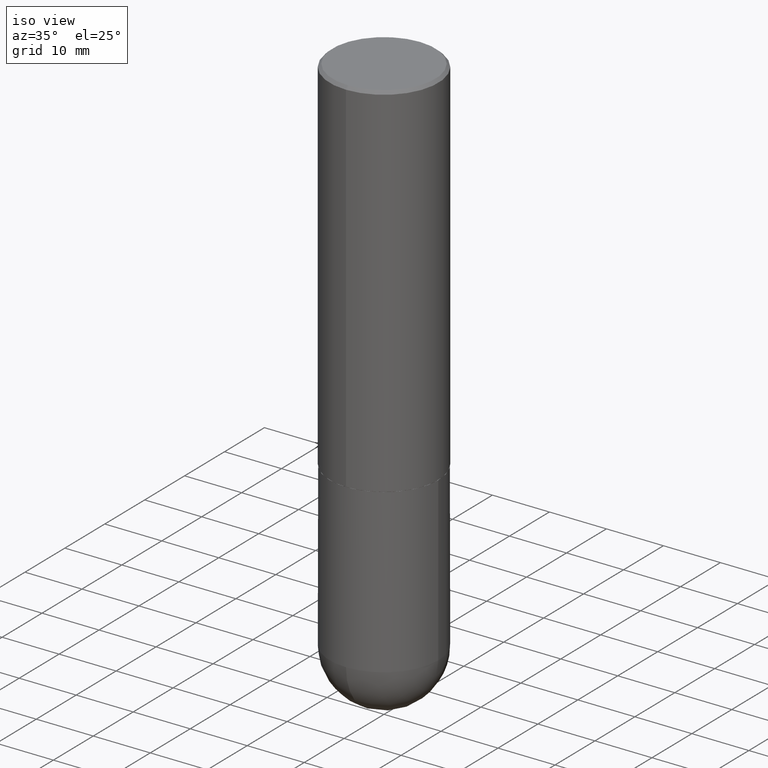
[diagram: clean part render]
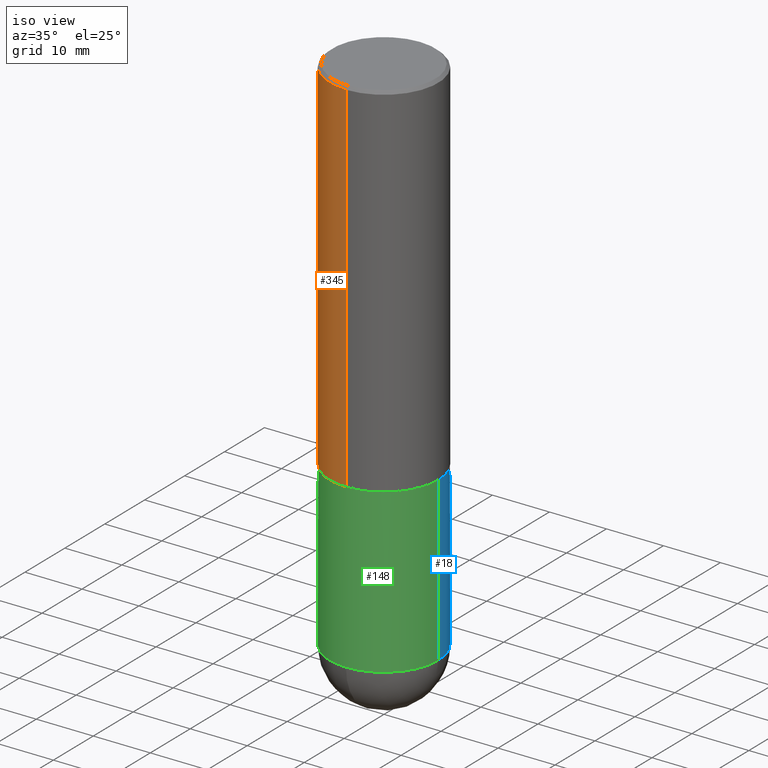
[diagram: same view with three faces highlighted in distinct colors, each labeled with its STEP entity id]
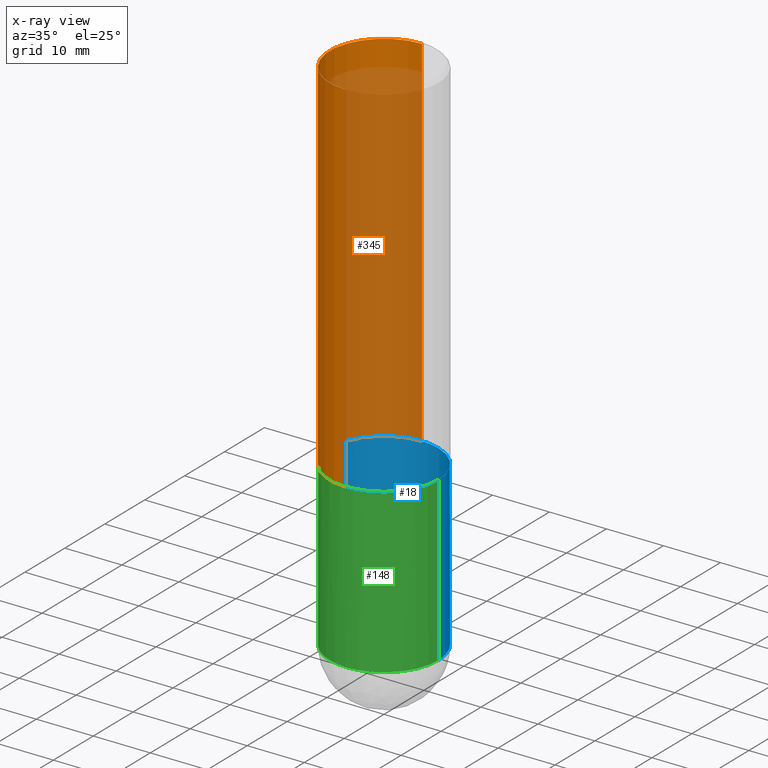
[diagram: x-ray of the same camera — body ghosted, the three highlighted faces saturated]
A machine part, iso view with three faces highlighted in distinct colors.
The next image is the same camera in x-ray (body ghosted, the three faces saturated) — at least one of them is partly hidden behind the body in this view.
Their STEP definitions:

[orange] entity #345 — the highlighted cylindrical surface (partial cylindrical patch) has radius 9.525 mm, axis along (-0, 0, 1).
#15 = DIRECTION ( 'NONE',  ( -6.982962677686266711E-15, -1.000000000000000000, 2.913971193241878794E-15 ) ) ;
#32 = EDGE_CURVE ( 'NONE', #393, #52, #278, .T. ) ;
#38 = CARTESIAN_POINT ( 'NONE',  ( 6.111502457370440261E-29, -8.724816745923021924E-15, -2.499000000000000110 ) ) ;
#42 = CARTESIAN_POINT ( 'NONE',  ( 2.664535259100376486E-15, 0.3750000000000001665, -1.309246210372602885E-15 ) ) ;
#52 = VERTEX_POINT ( 'NONE', #211 ) ;
#53 = EDGE_CURVE ( 'NONE', #228, #52, #206, .T. ) ;
#55 = CARTESIAN_POINT ( 'NONE',  ( 2.664535259100408040E-15, 0.3749999999999915623, -2.499000000000001442 ) ) ;
#78 = DIRECTION ( 'NONE',  ( -2.445579214634029192E-29, 3.491323227660272783E-15, 1.000000000000000000 ) ) ;
#92 = AXIS2_PLACEMENT_3D ( 'NONE', #117, #78, #374 ) ;
#96 = DIRECTION ( 'NONE',  ( -2.445579214634029192E-29, 3.491323227660272783E-15, 1.000000000000000000 ) ) ;
#97 = CYLINDRICAL_SURFACE ( 'NONE', #247, 0.3750000000000001665 ) ;
#112 = DIRECTION ( 'NONE',  ( -2.445579214634028911E-29, 3.491323227660273177E-15, 1.000000000000000000 ) ) ;
#117 = CARTESIAN_POINT ( 'NONE',  ( 4.891158429268078912E-31, -6.982646455320575000E-17, -0.02000000000000008715 ) ) ;
#122 = CIRCLE ( 'NONE', #175, 0.3750000000000002776 ) ;
#129 = ORIENTED_EDGE ( 'NONE', *, *, #384, .T. ) ;
#131 = CARTESIAN_POINT ( 'NONE',  ( 2.618611004132350411E-15, 0.3749999999999999445, -0.02000000000000139513 ) ) ;
#146 = VECTOR ( 'NONE', #112, 39.37007874015748143 ) ;
#161 = LINE ( 'NONE', #42, #304 ) ;
#175 = AXIS2_PLACEMENT_3D ( 'NONE', #38, #194, #15 ) ;
#194 = DIRECTION ( 'NONE',  ( -2.445579214634029192E-29, 3.491323227660272783E-15, 1.000000000000000000 ) ) ;
#206 = LINE ( 'NONE', #342, #146 ) ;
#211 = CARTESIAN_POINT ( 'NONE',  ( -2.572686749164323547E-15, -0.3750000000000001110, -0.01999999999999877570 ) ) ;
#228 = VERTEX_POINT ( 'NONE', #357 ) ;
#232 = ORIENTED_EDGE ( 'NONE', *, *, #32, .F. ) ;
#243 = EDGE_LOOP ( 'NONE', ( #339, #129, #307, #232 ) ) ;
#247 = AXIS2_PLACEMENT_3D ( 'NONE', #331, #96, #364 ) ;
#278 = CIRCLE ( 'NONE', #92, 0.3750000000000000555 ) ;
#296 = VERTEX_POINT ( 'NONE', #55 ) ;
#304 = VECTOR ( 'NONE', #361, 39.37007874015748143 ) ;
#307 = ORIENTED_EDGE ( 'NONE', *, *, #53, .T. ) ;
#318 = EDGE_CURVE ( 'NONE', #296, #393, #161, .T. ) ;
#331 = CARTESIAN_POINT ( 'NONE',  ( 0.000000000000000000, 0.000000000000000000, 0.000000000000000000 ) ) ;
#333 = FACE_OUTER_BOUND ( 'NONE', #243, .T. ) ;
#339 = ORIENTED_EDGE ( 'NONE', *, *, #318, .F. ) ;
#342 = CARTESIAN_POINT ( 'NONE',  ( -2.618611004132351200E-15, -0.3750000000000001665, 1.309246210372602885E-15 ) ) ;
#345 = ADVANCED_FACE ( 'NONE', ( #333 ), #97, .T. ) ;
#357 = CARTESIAN_POINT ( 'NONE',  ( -2.618611004132290852E-15, -0.3750000000000090483, -2.498999999999999222 ) ) ;
#361 = DIRECTION ( 'NONE',  ( -2.445579214634028911E-29, 3.491323227660273177E-15, 1.000000000000000000 ) ) ;
#364 = DIRECTION ( 'NONE',  ( -6.982962677686266711E-15, -1.000000000000000000, 3.491323227660272783E-15 ) ) ;
#374 = DIRECTION ( 'NONE',  ( -6.982962677686265922E-15, -1.000000000000000000, 3.494488891895536035E-15 ) ) ;
#384 = EDGE_CURVE ( 'NONE', #296, #228, #122, .T. ) ;
#393 = VERTEX_POINT ( 'NONE', #131 ) ;

[blue] entity #18 — the highlighted cylindrical surface (partial cylindrical patch) has radius 9.525 mm, axis along (-0, 0, 1).
#3 = CARTESIAN_POINT ( 'NONE',  ( -0.3750000000000001110, 2.664535259100376486E-15, -1.844600658845590159E-29 ) ) ;
#9 = DIRECTION ( 'NONE',  ( -2.445468806185136597E-29, 3.491481338843145583E-15, 1.000000000000000000 ) ) ;
#18 = ADVANCED_FACE ( 'NONE', ( #180 ), #347, .T. ) ;
#25 = VECTOR ( 'NONE', #252, 39.37007874015748143 ) ;
#69 = CARTESIAN_POINT ( 'NONE',  ( 8.864824422421120163E-29, -1.265661985330640259E-14, -3.624999999999999556 ) ) ;
#70 = VERTEX_POINT ( 'NONE', #314 ) ;
#71 = CARTESIAN_POINT ( 'NONE',  ( -0.3750000000000001110, -8.028126341106758858E-15, -3.624999999999999556 ) ) ;
#87 = LINE ( 'NONE', #120, #25 ) ;
#95 = EDGE_CURVE ( 'NONE', #98, #332, #173, .T. ) ;
#98 = VERTEX_POINT ( 'NONE', #144 ) ;
#118 = DIRECTION ( 'NONE',  ( 1.000000000000000000, -6.982962677686265922E-15, 4.876176775795935793E-29 ) ) ;
#120 = CARTESIAN_POINT ( 'NONE',  ( 0.3750000000000001110, -2.618611004132350411E-15, 1.828566290923476483E-29 ) ) ;
#121 = AXIS2_PLACEMENT_3D ( 'NONE', #324, #286, #185 ) ;
#141 = EDGE_CURVE ( 'NONE', #246, #292, #379, .T. ) ;
#144 = CARTESIAN_POINT ( 'NONE',  ( 2.618611004132438763E-15, 0.3749999999999873990, -3.625000000000000888 ) ) ;
#147 = DIRECTION ( 'NONE',  ( -2.445468806185136597E-29, 3.491481338843145583E-15, 1.000000000000000000 ) ) ;
#153 = EDGE_CURVE ( 'NONE', #70, #246, #87, .T. ) ;
#173 = CIRCLE ( 'NONE', #327, 0.3750000000000001110 ) ;
#180 = FACE_OUTER_BOUND ( 'NONE', #395, .T. ) ;
#185 = DIRECTION ( 'NONE',  ( 1.000000000000000000, -6.982962677686264344E-15, 0.000000000000000000 ) ) ;
#191 = ORIENTED_EDGE ( 'NONE', *, *, #95, .T. ) ;
#198 = ORIENTED_EDGE ( 'NONE', *, *, #199, .T. ) ;
#199 = EDGE_CURVE ( 'NONE', #332, #292, #380, .T. ) ;
#220 = CARTESIAN_POINT ( 'NONE',  ( 0.3750000000000000555, -1.134731435124021338E-14, -2.500000000000000000 ) ) ;
#234 = DIRECTION ( 'NONE',  ( 1.000000000000000000, -6.982962677686265922E-15, 0.000000000000000000 ) ) ;
#242 = ORIENTED_EDGE ( 'NONE', *, *, #153, .F. ) ;
#246 = VERTEX_POINT ( 'NONE', #220 ) ;
#252 = DIRECTION ( 'NONE',  ( -2.445468806185136877E-29, 3.491481338843145188E-15, 1.000000000000000000 ) ) ;
#254 = AXIS2_PLACEMENT_3D ( 'NONE', #69, #9, #234 ) ;
#257 = CARTESIAN_POINT ( 'NONE',  ( -0.3750000000000000555, -8.028126341106755702E-15, -2.500000000000000000 ) ) ;
#259 = AXIS2_PLACEMENT_3D ( 'NONE', #279, #147, #118 ) ;
#260 = CIRCLE ( 'NONE', #254, 0.3750000000000001110 ) ;
#265 = ORIENTED_EDGE ( 'NONE', *, *, #141, .F. ) ;
#273 = DIRECTION ( 'NONE',  ( 1.000000000000000000, -6.982962677686265922E-15, 0.000000000000000000 ) ) ;
#279 = CARTESIAN_POINT ( 'NONE',  ( 0.000000000000000000, 0.000000000000000000, 0.000000000000000000 ) ) ;
#281 = CARTESIAN_POINT ( 'NONE',  ( 8.864824422421120163E-29, -1.265661985330640259E-14, -3.624999999999999556 ) ) ;
#286 = DIRECTION ( 'NONE',  ( -2.445468806185136597E-29, 3.491481338843145583E-15, 1.000000000000000000 ) ) ;
#292 = VERTEX_POINT ( 'NONE', #257 ) ;
#301 = DIRECTION ( 'NONE',  ( -2.445468806185136597E-29, 3.491481338843145583E-15, 1.000000000000000000 ) ) ;
#314 = CARTESIAN_POINT ( 'NONE',  ( 0.3750000000000001110, -1.331127260433948773E-14, -3.624999999999999556 ) ) ;
#324 = CARTESIAN_POINT ( 'NONE',  ( 6.113672015462842613E-29, -8.728703347107864943E-15, -2.500000000000000000 ) ) ;
#327 = AXIS2_PLACEMENT_3D ( 'NONE', #281, #301, #273 ) ;
#332 = VERTEX_POINT ( 'NONE', #71 ) ;
#347 = CYLINDRICAL_SURFACE ( 'NONE', #259, 0.3750000000000001110 ) ;
#350 = EDGE_CURVE ( 'NONE', #70, #98, #260, .T. ) ;
#360 = ORIENTED_EDGE ( 'NONE', *, *, #350, .T. ) ;
#373 = VECTOR ( 'NONE', #412, 39.37007874015748143 ) ;
#379 = CIRCLE ( 'NONE', #121, 0.3750000000000000555 ) ;
#380 = LINE ( 'NONE', #3, #373 ) ;
#395 = EDGE_LOOP ( 'NONE', ( #191, #198, #265, #242, #360 ) ) ;
#412 = DIRECTION ( 'NONE',  ( -2.445468806185136877E-29, 3.491481338843145188E-15, 1.000000000000000000 ) ) ;

[green] entity #148 — the highlighted cylindrical surface (partial cylindrical patch) has radius 9.525 mm, axis along (-0, 0, 1).
#2 = DIRECTION ( 'NONE',  ( -2.445468806185136597E-29, 3.491481338843145583E-15, 1.000000000000000000 ) ) ;
#3 = CARTESIAN_POINT ( 'NONE',  ( -0.3750000000000001110, 2.664535259100376486E-15, -1.844600658845590159E-29 ) ) ;
#25 = VECTOR ( 'NONE', #252, 39.37007874015748143 ) ;
#36 = CIRCLE ( 'NONE', #115, 0.3750000000000000555 ) ;
#51 = ORIENTED_EDGE ( 'NONE', *, *, #214, .T. ) ;
#67 = ORIENTED_EDGE ( 'NONE', *, *, #199, .F. ) ;
#70 = VERTEX_POINT ( 'NONE', #314 ) ;
#71 = CARTESIAN_POINT ( 'NONE',  ( -0.3750000000000001110, -8.028126341106758858E-15, -3.624999999999999556 ) ) ;
#87 = LINE ( 'NONE', #120, #25 ) ;
#88 = CIRCLE ( 'NONE', #400, 0.3750000000000001110 ) ;
#89 = CARTESIAN_POINT ( 'NONE',  ( 8.864824422421120163E-29, -1.265661985330640259E-14, -3.624999999999999556 ) ) ;
#101 = ORIENTED_EDGE ( 'NONE', *, *, #233, .T. ) ;
#104 = ORIENTED_EDGE ( 'NONE', *, *, #294, .F. ) ;
#115 = AXIS2_PLACEMENT_3D ( 'NONE', #378, #215, #351 ) ;
#120 = CARTESIAN_POINT ( 'NONE',  ( 0.3750000000000001110, -2.618611004132350411E-15, 1.828566290923476483E-29 ) ) ;
#123 = DIRECTION ( 'NONE',  ( 1.000000000000000000, -6.982962677686265922E-15, 0.000000000000000000 ) ) ;
#124 = CARTESIAN_POINT ( 'NONE',  ( 8.864824422421120163E-29, -1.265661985330640259E-14, -3.624999999999999556 ) ) ;
#132 = EDGE_LOOP ( 'NONE', ( #67, #51, #101, #270, #104 ) ) ;
#148 = ADVANCED_FACE ( 'NONE', ( #222 ), #385, .T. ) ;
#152 = DIRECTION ( 'NONE',  ( -2.445468806185136597E-29, 3.491481338843145583E-15, 1.000000000000000000 ) ) ;
#153 = EDGE_CURVE ( 'NONE', #70, #246, #87, .T. ) ;
#193 = CIRCLE ( 'NONE', #209, 0.3750000000000001110 ) ;
#199 = EDGE_CURVE ( 'NONE', #332, #292, #380, .T. ) ;
#209 = AXIS2_PLACEMENT_3D ( 'NONE', #124, #2, #123 ) ;
#214 = EDGE_CURVE ( 'NONE', #332, #398, #88, .T. ) ;
#215 = DIRECTION ( 'NONE',  ( -2.445468806185136597E-29, 3.491481338843145583E-15, 1.000000000000000000 ) ) ;
#217 = AXIS2_PLACEMENT_3D ( 'NONE', #317, #383, #352 ) ;
#220 = CARTESIAN_POINT ( 'NONE',  ( 0.3750000000000000555, -1.134731435124021338E-14, -2.500000000000000000 ) ) ;
#222 = FACE_OUTER_BOUND ( 'NONE', #132, .T. ) ;
#233 = EDGE_CURVE ( 'NONE', #398, #70, #193, .T. ) ;
#246 = VERTEX_POINT ( 'NONE', #220 ) ;
#252 = DIRECTION ( 'NONE',  ( -2.445468806185136877E-29, 3.491481338843145188E-15, 1.000000000000000000 ) ) ;
#257 = CARTESIAN_POINT ( 'NONE',  ( -0.3750000000000000555, -8.028126341106755702E-15, -2.500000000000000000 ) ) ;
#270 = ORIENTED_EDGE ( 'NONE', *, *, #153, .T. ) ;
#292 = VERTEX_POINT ( 'NONE', #257 ) ;
#294 = EDGE_CURVE ( 'NONE', #292, #246, #36, .T. ) ;
#314 = CARTESIAN_POINT ( 'NONE',  ( 0.3750000000000001110, -1.331127260433948773E-14, -3.624999999999999556 ) ) ;
#317 = CARTESIAN_POINT ( 'NONE',  ( 0.000000000000000000, 0.000000000000000000, 0.000000000000000000 ) ) ;
#319 = DIRECTION ( 'NONE',  ( 1.000000000000000000, -6.982962677686265922E-15, 0.000000000000000000 ) ) ;
#328 = CARTESIAN_POINT ( 'NONE',  ( -2.664535259100290106E-15, -0.3750000000000131006, -3.624999999999998668 ) ) ;
#332 = VERTEX_POINT ( 'NONE', #71 ) ;
#351 = DIRECTION ( 'NONE',  ( 1.000000000000000000, -6.982962677686264344E-15, 0.000000000000000000 ) ) ;
#352 = DIRECTION ( 'NONE',  ( 1.000000000000000000, -6.982962677686265922E-15, 4.876176775795935793E-29 ) ) ;
#373 = VECTOR ( 'NONE', #412, 39.37007874015748143 ) ;
#378 = CARTESIAN_POINT ( 'NONE',  ( 6.113672015462842613E-29, -8.728703347107864943E-15, -2.500000000000000000 ) ) ;
#380 = LINE ( 'NONE', #3, #373 ) ;
#383 = DIRECTION ( 'NONE',  ( -2.445468806185136597E-29, 3.491481338843145583E-15, 1.000000000000000000 ) ) ;
#385 = CYLINDRICAL_SURFACE ( 'NONE', #217, 0.3750000000000001110 ) ;
#398 = VERTEX_POINT ( 'NONE', #328 ) ;
#400 = AXIS2_PLACEMENT_3D ( 'NONE', #89, #152, #319 ) ;
#412 = DIRECTION ( 'NONE',  ( -2.445468806185136877E-29, 3.491481338843145188E-15, 1.000000000000000000 ) ) ;